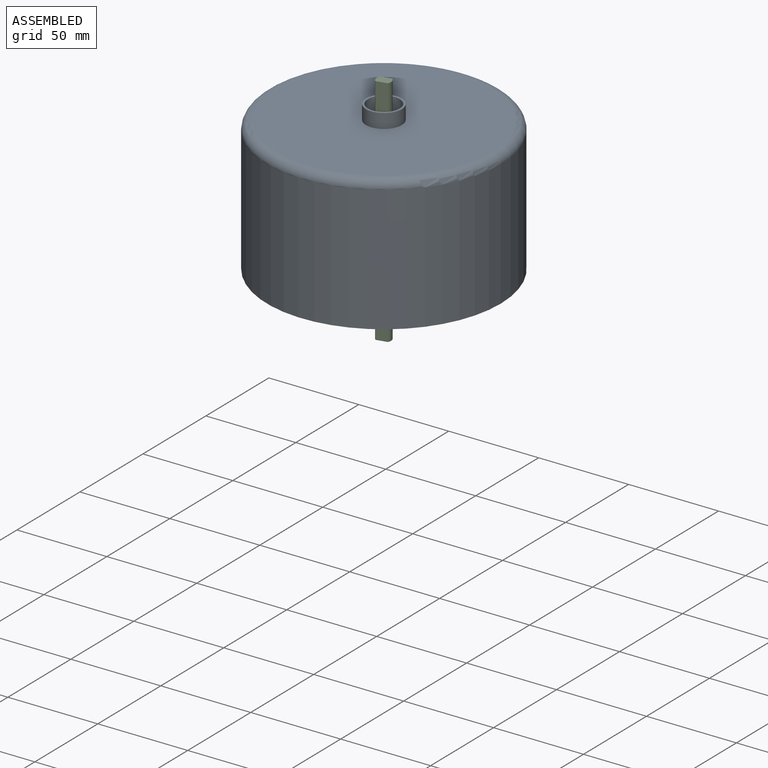
[diagram: assembled view]
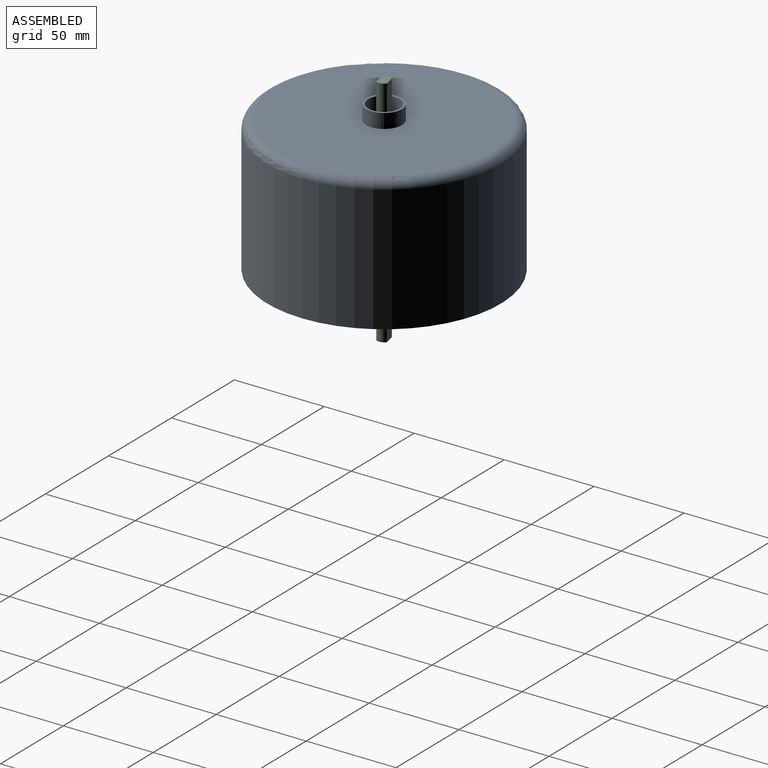
[diagram: assembled view, second angle]
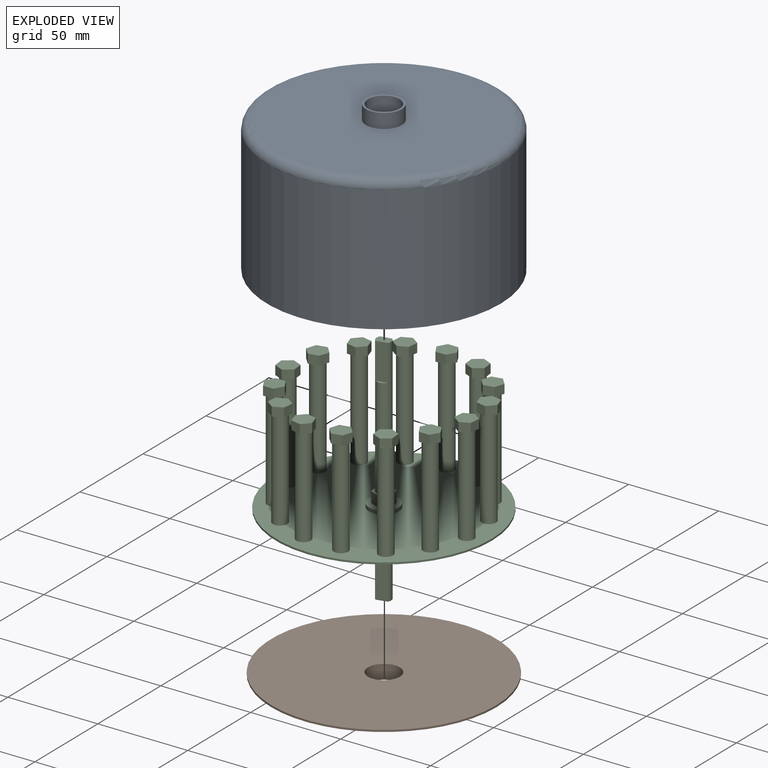
[diagram: exploded view]
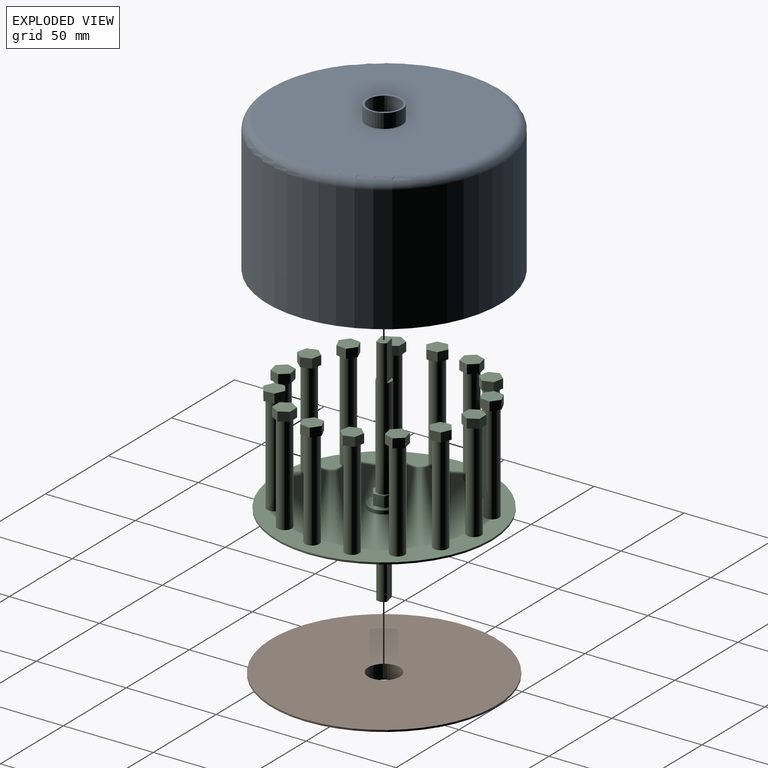
[diagram: exploded view, second angle]
ASSEMBLY  parts=3 mates=2
PART A: 41 faces, bbox 140.7x140.7x83 mm
  f0: plane 17.7x17.7mm, normal (0,0,1), area 195.7mm2, adj f1,f38
  f1: cylinder r=4mm len=8mm, axis (0,0,1), area 25.1mm2, adj f0,f2
  f2: plane 125x125mm, normal (0,0,-1), area 10500.5mm2, adj f1,f4,f6,f8,f10,f12,f14,f16
  f3: plane 120x120mm, normal (0,0,1), area 10998.4mm2, adj f37,f39
  f4: cylinder r=6.04mm len=12.09mm, axis (0,0,1), area 121.5mm2, adj f2,f5
  f5: plane 12.09x12.09mm, normal (0,0,-1), area 114.7mm2, adj f4
  f6: cylinder r=6.04mm len=12.09mm, axis (0,0,1), area 121.5mm2, adj f2,f7
  f7: plane 12.09x12.09mm, normal (0,0,-1), area 114.7mm2, adj f6
  f8: cylinder r=6.04mm len=12.09mm, axis (0,0,1), area 121.5mm2, adj f2,f9
  f9: plane 12.09x12.09mm, normal (0,0,-1), area 114.7mm2, adj f8
  f10: cylinder r=6.04mm len=12.09mm, axis (0,0,1), area 121.5mm2, adj f2,f11
  f11: plane 12.09x12.09mm, normal (0,0,-1), area 114.7mm2, adj f10
  f12: cylinder r=6.04mm len=12.09mm, axis (0,0,1), area 121.5mm2, adj f2,f13
  f13: plane 12.09x12.09mm, normal (0,0,-1), area 114.7mm2, adj f12
  f14: cylinder r=6.04mm len=12.09mm, axis (0,0,1), area 121.5mm2, adj f2,f15
  f15: plane 12.09x12.09mm, normal (0,0,-1), area 114.7mm2, adj f14
  f16: cylinder r=6.04mm len=12.09mm, axis (0,0,1), area 121.5mm2, adj f2,f17
  f17: plane 12.09x12.09mm, normal (0,0,-1), area 114.7mm2, adj f16
  f18: cylinder r=6.04mm len=12.09mm, axis (0,0,1), area 121.5mm2, adj f2,f19
  f19: plane 12.09x12.09mm, normal (0,0,-1), area 114.7mm2, adj f18
  f20: cylinder r=6.04mm len=12.09mm, axis (0,0,1), area 121.5mm2, adj f2,f21
  f21: plane 12.09x12.09mm, normal (0,0,-1), area 114.7mm2, adj f20
  f22: cylinder r=6.04mm len=12.09mm, axis (0,0,1), area 121.5mm2, adj f2,f23
  f23: plane 12.09x12.09mm, normal (0,0,-1), area 114.7mm2, adj f22
  f24: cylinder r=6.04mm len=12.09mm, axis (0,0,1), area 121.5mm2, adj f2,f25
  f25: plane 12.09x12.09mm, normal (0,0,-1), area 114.7mm2, adj f24
  f26: cylinder r=6.04mm len=12.09mm, axis (0,0,1), area 121.5mm2, adj f2,f27
  f27: plane 12.09x12.09mm, normal (0,0,-1), area 114.7mm2, adj f26
  f28: cylinder r=6.04mm len=12.09mm, axis (0,0,1), area 121.5mm2, adj f2,f29
  f29: plane 12.09x12.09mm, normal (0,0,-1), area 114.7mm2, adj f28
  f30: cylinder r=6.04mm len=12.09mm, axis (0,0,1), area 121.5mm2, adj f2,f31
  f31: plane 12.09x12.09mm, normal (0,0,-1), area 114.7mm2, adj f30
  f32: cylinder r=6.04mm len=12.09mm, axis (0,0,1), area 121.5mm2, adj f2,f33
  f33: plane 12.09x12.09mm, normal (0,0,-1), area 114.7mm2, adj f32
  f34: cylinder r=62.5mm len=125mm, axis (0,0,1), area 29059.7mm2, adj f2,f36
  f35: cylinder r=65mm len=130mm, axis (0,0,1), area 28588.5mm2, adj f36,f37
  f36: plane 130x130mm, normal (0,0,-1), area 1001.4mm2, adj f34,f35
  f37: torus R=60mm, axis (0,0,1), area 3118mm2, adj f3,f35
  f38: cylinder r=8.85mm len=17.7mm, axis (0,0,-1), area 444.7mm2, adj f0,f40
  f39: cylinder r=9.96mm len=19.91mm, axis (0,0,-1), area 500.4mm2, adj f3,f40
  f40: plane 19.91x19.91mm, normal (0,0,1), area 65.4mm2, adj f38,f39
PART B: 6 faces, bbox 125x125x8 mm
  f0: cylinder r=9.96mm len=19.91mm, axis (0,0,1), area 437.9mm2, adj f2,f5
  f1: cylinder r=8.85mm len=17.7mm, axis (0,0,1), area 444.7mm2, adj f2,f3
  f2: plane 19.91x19.91mm, normal (0,0,-1), area 65.4mm2, adj f0,f1
  f3: plane 125x125mm, normal (0,0,1), area 12025.9mm2, adj f1,f4
  f4: cylinder r=62.5mm len=125mm, axis (0,0,1), area 392.7mm2, adj f3,f5
  f5: plane 125x125mm, normal (0,0,-1), area 11960.5mm2, adj f0,f4
PART C: 168 faces, bbox 120x120x130 mm
  f0: plane 5.89x2.11mm, normal (0,0,-1), area 5.8mm2, adj f161,f166
  f1: plane 5.89x2.11mm, normal (0,0,-1), area 5.8mm2, adj f161,f165
  f2: plane 5.89x2.11mm, normal (0,0,1), area 5.8mm2, adj f144,f163
  f3: plane 5.89x2.11mm, normal (0,0,1), area 5.8mm2, adj f144,f162
  f4: plane 120x120mm, normal (0,0,1), area 10338.3mm2, adj f5,f7,f8,f9,f10,f11,f12,f13
  f5: cylinder r=60mm len=120mm, axis (0,0,-1), area 377mm2, adj f4,f6
  f6: plane 120x120mm, normal (0,0,-1), area 11092.3mm2, adj f5,f152
  f7: cylinder r=4mm len=55mm, axis (0,0,-1), area 1382.3mm2, adj f4,f29
  f8: cylinder r=4mm len=55mm, axis (0,0,-1), area 1382.3mm2, adj f4,f37
  f9: cylinder r=4mm len=55mm, axis (0,0,-1), area 1382.3mm2, adj f4,f45
  f10: cylinder r=4mm len=55mm, axis (0,0,-1), area 1382.3mm2, adj f4,f53
  f11: cylinder r=4mm len=55mm, axis (0,0,-1), area 1382.3mm2, adj f4,f61
  f12: cylinder r=4mm len=55mm, axis (0,0,-1), area 1382.3mm2, adj f4,f69
  f13: cylinder r=4mm len=55mm, axis (0,0,-1), area 1382.3mm2, adj f4,f77
  f14: cylinder r=4mm len=55mm, axis (0,0,-1), area 1382.3mm2, adj f4,f85
  f15: cylinder r=4mm len=55mm, axis (0,0,-1), area 1382.3mm2, adj f4,f93
  f16: cylinder r=4mm len=55mm, axis (0,0,-1), area 1382.3mm2, adj f4,f101
  f17: cylinder r=4mm len=55mm, axis (0,0,-1), area 1382.3mm2, adj f4,f109
  f18: cylinder r=4mm len=55mm, axis (0,0,-1), area 1382.3mm2, adj f4,f117
  f19: cylinder r=4mm len=55mm, axis (0,0,-1), area 1382.3mm2, adj f4,f125
  f20: cylinder r=4mm len=55mm, axis (0,0,-1), area 1382.3mm2, adj f4,f133
  f21: cylinder r=4mm len=55mm, axis (0,0,-1), area 1382.3mm2, adj f4,f141
  f22: plane 5x4.98mm, normal (-0.87,-0.5,0), area 28.8mm2, adj f23,f27,f28,f29
  f23: plane 5.75x5mm, normal (0,-1,0), area 28.8mm2, adj f22,f24,f28,f29
  f24: plane 5x4.98mm, normal (0.87,-0.5,0), area 28.8mm2, adj f23,f25,f28,f29
  f25: plane 5x4.98mm, normal (0.87,0.5,0), area 28.8mm2, adj f24,f26,f28,f29
  f26: plane 5.75x5mm, normal (0,1,0), area 28.8mm2, adj f25,f27,f28,f29
  f27: plane 5x4.98mm, normal (-0.87,0.5,0), area 28.8mm2, adj f22,f26,f28,f29
  f28: plane 11.5x9.96mm, normal (0,0,1), area 86mm2, adj f22,f23,f24,f25,f26,f27
  f29: plane 11.5x9.96mm, normal (0,0,-1), area 35.7mm2, adj f7,f22,f23,f24,f25,f26,f27
  f30: plane 5.26x5mm, normal (-0.41,0.91,0), area 28.8mm2, adj f31,f35,f36,f37
  f31: plane 5.72x5mm, normal (-0.99,0.1,0), area 28.8mm2, adj f30,f32,f36,f37
  f32: plane 5x4.65mm, normal (-0.59,-0.81,0), area 28.8mm2, adj f31,f33,f36,f37
  f33: plane 5.26x5mm, normal (0.41,-0.91,0), area 28.8mm2, adj f32,f34,f36,f37
  f34: plane 5.72x5mm, normal (0.99,-0.1,0), area 28.8mm2, adj f33,f35,f36,f37
  f35: plane 5x4.65mm, normal (0.59,0.81,0), area 28.8mm2, adj f30,f34,f36,f37
  f36: plane 11.44x10.51mm, normal (0,0,1), area 86mm2, adj f30,f31,f32,f33,f34,f35
  f37: plane 11.44x10.51mm, normal (0,0,-1), area 35.7mm2, adj f8,f30,f31,f32,f33,f34,f35
  f38: plane 5x4.27mm, normal (-0.74,0.67,0), area 28.8mm2, adj f39,f43,f44,f45
  f39: plane 5.47x5mm, normal (-0.95,-0.31,0), area 28.8mm2, adj f38,f40,f44,f45
  f40: plane 5.63x5mm, normal (-0.21,-0.98,0), area 28.8mm2, adj f39,f41,f44,f45
  f41: plane 5x4.27mm, normal (0.74,-0.67,0), area 28.8mm2, adj f40,f42,f44,f45
  f42: plane 5.47x5mm, normal (0.95,0.31,0), area 28.8mm2, adj f41,f43,f44,f45
  f43: plane 5.63x5mm, normal (0.21,0.98,0), area 28.8mm2, adj f38,f42,f44,f45
  f44: plane 11.25x10.94mm, normal (0,0,1), area 86mm2, adj f38,f39,f40,f41,f42,f43
  f45: plane 11.25x10.94mm, normal (0,0,-1), area 35.7mm2, adj f9,f38,f39,f40,f41,f42,f43
  f46: plane 5.47x5mm, normal (-0.95,0.31,0), area 28.8mm2, adj f47,f51,f52,f53
  f47: plane 5x4.27mm, normal (-0.74,-0.67,0), area 28.8mm2, adj f46,f48,f52,f53
  f48: plane 5.63x5mm, normal (0.21,-0.98,0), area 28.8mm2, adj f47,f49,f52,f53
  f49: plane 5.47x5mm, normal (0.95,-0.31,0), area 28.8mm2, adj f48,f50,f52,f53
  f50: plane 5x4.27mm, normal (0.74,0.67,0), area 28.8mm2, adj f49,f51,f52,f53
  f51: plane 5.63x5mm, normal (-0.21,0.98,0), area 28.8mm2, adj f46,f50,f52,f53
  f52: plane 11.25x10.94mm, normal (0,0,1), area 86mm2, adj f46,f47,f48,f49,f50,f51
  f53: plane 11.25x10.94mm, normal (0,0,-1), area 35.7mm2, adj f10,f46,f47,f48,f49,f50,f51
  f54: plane 5.72x5mm, normal (-0.99,-0.1,0), area 28.8mm2, adj f55,f59,f60,f61
  f55: plane 5.26x5mm, normal (-0.41,-0.91,0), area 28.8mm2, adj f54,f56,f60,f61
  f56: plane 5x4.65mm, normal (0.59,-0.81,0), area 28.8mm2, adj f55,f57,f60,f61
  f57: plane 5.72x5mm, normal (0.99,0.1,0), area 28.8mm2, adj f56,f58,f60,f61
  f58: plane 5.26x5mm, normal (0.41,0.91,0), area 28.8mm2, adj f57,f59,f60,f61
  f59: plane 5x4.65mm, normal (-0.59,0.81,0), area 28.8mm2, adj f54,f58,f60,f61
  f60: plane 11.44x10.51mm, normal (0,0,1), area 86mm2, adj f54,f55,f56,f57,f58,f59
  f61: plane 11.44x10.51mm, normal (0,0,-1), area 35.7mm2, adj f11,f54,f55,f56,f57,f58,f59
  f62: plane 5x4.98mm, normal (-0.87,-0.5,0), area 28.8mm2, adj f63,f67,f68,f69
  f63: plane 5.75x5mm, normal (0,-1,0), area 28.8mm2, adj f62,f64,f68,f69
  f64: plane 5x4.98mm, normal (0.87,-0.5,0), area 28.8mm2, adj f63,f65,f68,f69
  f65: plane 5x4.98mm, normal (0.87,0.5,0), area 28.8mm2, adj f64,f66,f68,f69
  f66: plane 5.75x5mm, normal (0,1,0), area 28.8mm2, adj f65,f67,f68,f69
  f67: plane 5x4.98mm, normal (-0.87,0.5,0), area 28.8mm2, adj f62,f66,f68,f69
  f68: plane 11.5x9.96mm, normal (0,0,1), area 86mm2, adj f62,f63,f64,f65,f66,f67
  f69: plane 11.5x9.96mm, normal (0,0,-1), area 35.7mm2, adj f12,f62,f63,f64,f65,f66,f67
  f70: plane 5x4.65mm, normal (-0.59,-0.81,0), area 28.8mm2, adj f71,f75,f76,f77
  f71: plane 5.26x5mm, normal (0.41,-0.91,0), area 28.8mm2, adj f70,f72,f76,f77
  f72: plane 5.72x5mm, normal (0.99,-0.1,0), area 28.8mm2, adj f71,f73,f76,f77
  f73: plane 5x4.65mm, normal (0.59,0.81,0), area 28.8mm2, adj f72,f74,f76,f77
  f74: plane 5.26x5mm, normal (-0.41,0.91,0), area 28.8mm2, adj f73,f75,f76,f77
  f75: plane 5.72x5mm, normal (-0.99,0.1,0), area 28.8mm2, adj f70,f74,f76,f77
  f76: plane 11.44x10.51mm, normal (0,0,1), area 86mm2, adj f70,f71,f72,f73,f74,f75
  f77: plane 11.44x10.51mm, normal (0,0,-1), area 35.7mm2, adj f13,f70,f71,f72,f73,f74,f75
  f78: plane 5.63x5mm, normal (-0.21,-0.98,0), area 28.8mm2, adj f79,f83,f84,f85
  f79: plane 5x4.27mm, normal (0.74,-0.67,0), area 28.8mm2, adj f78,f80,f84,f85
  f80: plane 5.47x5mm, normal (0.95,0.31,0), area 28.8mm2, adj f79,f81,f84,f85
  f81: plane 5.63x5mm, normal (0.21,0.98,0), area 28.8mm2, adj f80,f82,f84,f85
  f82: plane 5x4.27mm, normal (-0.74,0.67,0), area 28.8mm2, adj f81,f83,f84,f85
  f83: plane 5.47x5mm, normal (-0.95,-0.31,0), area 28.8mm2, adj f78,f82,f84,f85
  f84: plane 11.25x10.94mm, normal (0,0,1), area 86mm2, adj f78,f79,f80,f81,f82,f83
  f85: plane 11.25x10.94mm, normal (0,0,-1), area 35.7mm2, adj f14,f78,f79,f80,f81,f82,f83
  f86: plane 5.63x5mm, normal (0.21,-0.98,0), area 28.8mm2, adj f87,f91,f92,f93
  f87: plane 5.47x5mm, normal (0.95,-0.31,0), area 28.8mm2, adj f86,f88,f92,f93
  f88: plane 5x4.27mm, normal (0.74,0.67,0), area 28.8mm2, adj f87,f89,f92,f93
  f89: plane 5.63x5mm, normal (-0.21,0.98,0), area 28.8mm2, adj f88,f90,f92,f93
  f90: plane 5.47x5mm, normal (-0.95,0.31,0), area 28.8mm2, adj f89,f91,f92,f93
  f91: plane 5x4.27mm, normal (-0.74,-0.67,0), area 28.8mm2, adj f86,f90,f92,f93
  f92: plane 11.25x10.94mm, normal (0,0,1), area 86mm2, adj f86,f87,f88,f89,f90,f91
  f93: plane 11.25x10.94mm, normal (0,0,-1), area 35.7mm2, adj f15,f86,f87,f88,f89,f90,f91
  f94: plane 5x4.65mm, normal (0.59,-0.81,0), area 28.8mm2, adj f95,f99,f100,f101
  f95: plane 5.72x5mm, normal (0.99,0.1,0), area 28.8mm2, adj f94,f96,f100,f101
  f96: plane 5.26x5mm, normal (0.41,0.91,0), area 28.8mm2, adj f95,f97,f100,f101
  f97: plane 5x4.65mm, normal (-0.59,0.81,0), area 28.8mm2, adj f96,f98,f100,f101
  f98: plane 5.72x5mm, normal (-0.99,-0.1,0), area 28.8mm2, adj f97,f99,f100,f101
  f99: plane 5.26x5mm, normal (-0.41,-0.91,0), area 28.8mm2, adj f94,f98,f100,f101
  f100: plane 11.44x10.51mm, normal (0,0,1), area 86mm2, adj f94,f95,f96,f97,f98,f99
  f101: plane 11.44x10.51mm, normal (0,0,-1), area 35.7mm2, adj f16,f94,f95,f96,f97,f98,f99
  f102: plane 5x4.98mm, normal (0.87,-0.5,0), area 28.8mm2, adj f103,f107,f108,f109
  f103: plane 5x4.98mm, normal (0.87,0.5,0), area 28.8mm2, adj f102,f104,f108,f109
  f104: plane 5.75x5mm, normal (0,1,0), area 28.8mm2, adj f103,f105,f108,f109
  f105: plane 5x4.98mm, normal (-0.87,0.5,0), area 28.8mm2, adj f104,f106,f108,f109
  f106: plane 5x4.98mm, normal (-0.87,-0.5,0), area 28.8mm2, adj f105,f107,f108,f109
  f107: plane 5.75x5mm, normal (0,-1,0), area 28.8mm2, adj f102,f106,f108,f109
  f108: plane 11.5x9.96mm, normal (0,0,1), area 86mm2, adj f102,f103,f104,f105,f106,f107
  f109: plane 11.5x9.96mm, normal (0,0,-1), area 35.7mm2, adj f17,f102,f103,f104,f105,f106,f107
  f110: plane 5.72x5mm, normal (0.99,-0.1,0), area 28.8mm2, adj f111,f115,f116,f117
  f111: plane 5x4.65mm, normal (0.59,0.81,0), area 28.8mm2, adj f110,f112,f116,f117
  f112: plane 5.26x5mm, normal (-0.41,0.91,0), area 28.8mm2, adj f111,f113,f116,f117
  f113: plane 5.72x5mm, normal (-0.99,0.1,0), area 28.8mm2, adj f112,f114,f116,f117
  f114: plane 5x4.65mm, normal (-0.59,-0.81,0), area 28.8mm2, adj f113,f115,f116,f117
  f115: plane 5.26x5mm, normal (0.41,-0.91,0), area 28.8mm2, adj f110,f114,f116,f117
  f116: plane 11.44x10.51mm, normal (0,0,1), area 86mm2, adj f110,f111,f112,f113,f114,f115
  f117: plane 11.44x10.51mm, normal (0,0,-1), area 35.7mm2, adj f18,f110,f111,f112,f113,f114,f115
  f118: plane 5.47x5mm, normal (0.95,0.31,0), area 28.8mm2, adj f119,f123,f124,f125
  f119: plane 5.63x5mm, normal (0.21,0.98,0), area 28.8mm2, adj f118,f120,f124,f125
  f120: plane 5x4.27mm, normal (-0.74,0.67,0), area 28.8mm2, adj f119,f121,f124,f125
  f121: plane 5.47x5mm, normal (-0.95,-0.31,0), area 28.8mm2, adj f120,f122,f124,f125
  f122: plane 5.63x5mm, normal (-0.21,-0.98,0), area 28.8mm2, adj f121,f123,f124,f125
  f123: plane 5x4.27mm, normal (0.74,-0.67,0), area 28.8mm2, adj f118,f122,f124,f125
  f124: plane 11.25x10.94mm, normal (0,0,1), area 86mm2, adj f118,f119,f120,f121,f122,f123
  f125: plane 11.25x10.94mm, normal (0,0,-1), area 35.7mm2, adj f19,f118,f119,f120,f121,f122,f123
  f126: plane 5x4.27mm, normal (0.74,0.67,0), area 28.8mm2, adj f127,f131,f132,f133
  f127: plane 5.63x5mm, normal (-0.21,0.98,0), area 28.8mm2, adj f126,f128,f132,f133
  f128: plane 5.47x5mm, normal (-0.95,0.31,0), area 28.8mm2, adj f127,f129,f132,f133
  f129: plane 5x4.27mm, normal (-0.74,-0.67,0), area 28.8mm2, adj f128,f130,f132,f133
  f130: plane 5.63x5mm, normal (0.21,-0.98,0), area 28.8mm2, adj f129,f131,f132,f133
  f131: plane 5.47x5mm, normal (0.95,-0.31,0), area 28.8mm2, adj f126,f130,f132,f133
  f132: plane 11.25x10.94mm, normal (0,0,1), area 86mm2, adj f126,f127,f128,f129,f130,f131
  f133: plane 11.25x10.94mm, normal (0,0,-1), area 35.7mm2, adj f20,f126,f127,f128,f129,f130,f131
  f134: plane 5.26x5mm, normal (0.41,0.91,0), area 28.8mm2, adj f135,f139,f140,f141
  f135: plane 5x4.65mm, normal (-0.59,0.81,0), area 28.8mm2, adj f134,f136,f140,f141
  f136: plane 5.72x5mm, normal (-0.99,-0.1,0), area 28.8mm2, adj f135,f137,f140,f141
  f137: plane 5.26x5mm, normal (-0.41,-0.91,0), area 28.8mm2, adj f136,f138,f140,f141
  f138: plane 5x4.65mm, normal (0.59,-0.81,0), area 28.8mm2, adj f137,f139,f140,f141
  f139: plane 5.72x5mm, normal (0.99,0.1,0), area 28.8mm2, adj f134,f138,f140,f141
  f140: plane 11.44x10.51mm, normal (0,0,1), area 86mm2, adj f134,f135,f136,f137,f138,f139
  f141: plane 11.44x10.51mm, normal (0,0,-1), area 35.7mm2, adj f21,f134,f135,f136,f137,f138,f139
  f142: cylinder r=8.32mm len=16.64mm, axis (0,0,-1), area 104.5mm2, adj f4,f143
  f143: plane 16.64x16.64mm, normal (0,0,1), area 131.5mm2, adj f142,f146,f147,f148,f149,f150,f151
  f144: cylinder r=4mm len=76mm, axis (0,0,-1), area 1636.1mm2, adj f2,f3,f145,f162,f163,f164
  f145: plane 11.44x10.51mm, normal (0,0,1), area 35.7mm2, adj f144,f146,f147,f148,f149,f150,f151
  f146: plane 6x4.65mm, normal (0.59,-0.81,0), area 34.5mm2, adj f143,f145,f147,f151
  f147: plane 6x5.26mm, normal (-0.41,-0.91,0), area 34.5mm2, adj f143,f145,f146,f148
  f148: plane 6x5.72mm, normal (-0.99,-0.1,0), area 34.5mm2, adj f143,f145,f147,f149
  f149: plane 6x4.65mm, normal (-0.59,0.81,0), area 34.5mm2, adj f143,f145,f148,f150
  f150: plane 6x5.26mm, normal (0.41,0.91,0), area 34.5mm2, adj f143,f145,f149,f151
  f151: plane 6x5.72mm, normal (0.99,0.1,0), area 34.5mm2, adj f143,f145,f146,f150
  f152: cylinder r=8.32mm len=16.64mm, axis (0,0,1), area 104.5mm2, adj f6,f153
  f153: plane 16.64x16.64mm, normal (0,0,-1), area 131.5mm2, adj f152,f154,f155,f156,f157,f158,f159
  f154: plane 5.72x3.8mm, normal (0.99,0.1,0), area 21.9mm2, adj f153,f155,f159,f160
  f155: plane 5.26x3.8mm, normal (0.41,0.91,0), area 21.9mm2, adj f153,f154,f156,f160
  f156: plane 4.65x3.8mm, normal (-0.59,0.81,0), area 21.9mm2, adj f153,f155,f157,f160
  f157: plane 5.72x3.8mm, normal (-0.99,-0.1,0), area 21.9mm2, adj f153,f156,f158,f160
  f158: plane 5.26x3.8mm, normal (-0.41,-0.91,0), area 21.9mm2, adj f153,f157,f159,f160
  f159: plane 4.65x3.8mm, normal (0.59,-0.81,0), area 21.9mm2, adj f153,f154,f158,f160
  f160: plane 11.44x10.51mm, normal (0,0,-1), area 35.7mm2, adj f154,f155,f156,f157,f158,f159,f161
  f161: cylinder r=4mm len=39.2mm, axis (0,0,1), area 711.2mm2, adj f0,f1,f160,f165,f166,f167
  f162: plane 20x5.89mm, normal (0.22,-0.98,0), area 120.9mm2, adj f3,f144,f164
  f163: plane 20x5.89mm, normal (-0.22,0.98,0), area 120.9mm2, adj f2,f144,f164
  f164: plane 8x6.45mm, normal (0,0,1), area 38.7mm2, adj f144,f162,f163
  f165: plane 20x5.89mm, normal (0.22,-0.98,0), area 120.9mm2, adj f1,f161,f167
  f166: plane 20x5.89mm, normal (-0.22,0.98,0), area 120.9mm2, adj f0,f161,f167
  f167: plane 8x6.45mm, normal (0,0,-1), area 38.7mm2, adj f161,f165,f166
PLACE A t=(38.72,50.44,87.13)mm
PLACE B t=(38.72,50.44,12.13)mm
PLACE C t=(38.72,50.44,22.13)mm
MATE revolute B.f4 <-> A.f34  axis (0,0,1) through (38.72,50.44,12.13)mm
MATE revolute A.f35 <-> C.f144  axis (0,0,1) through (38.72,50.44,87.13)mm
